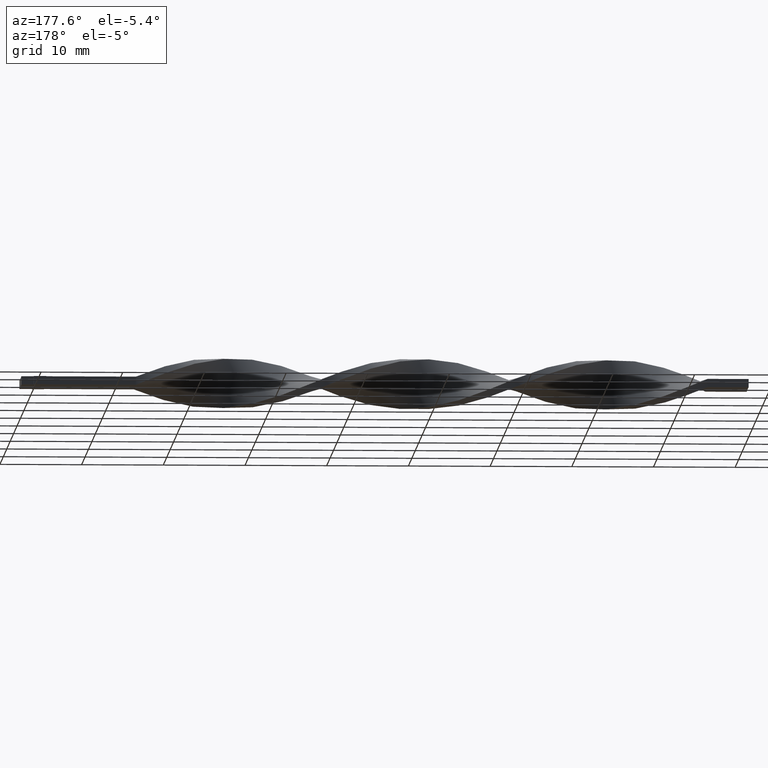
[diagram: clean part render]
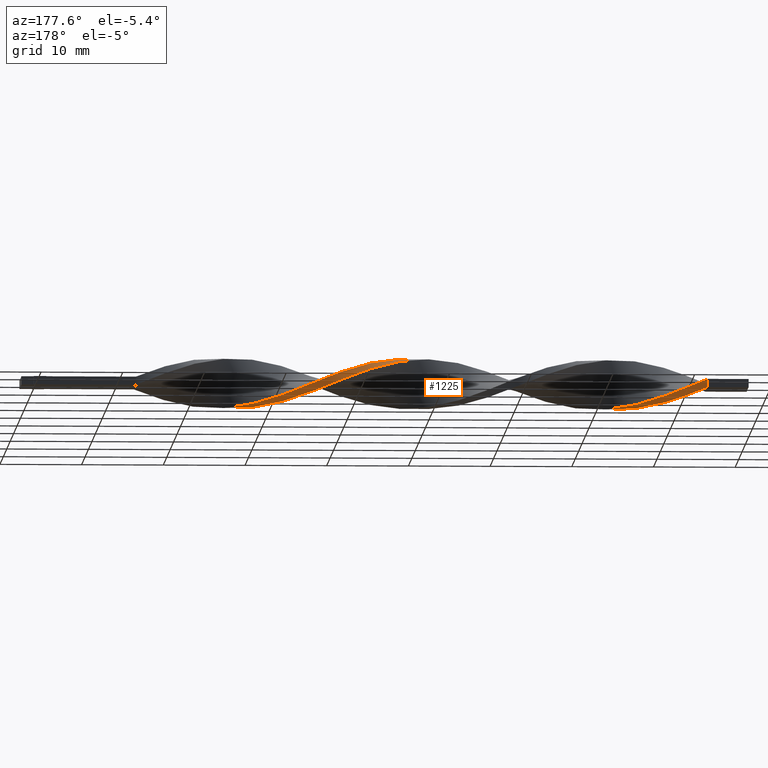
[diagram: same view with one face highlighted and labeled with its STEP entity id]
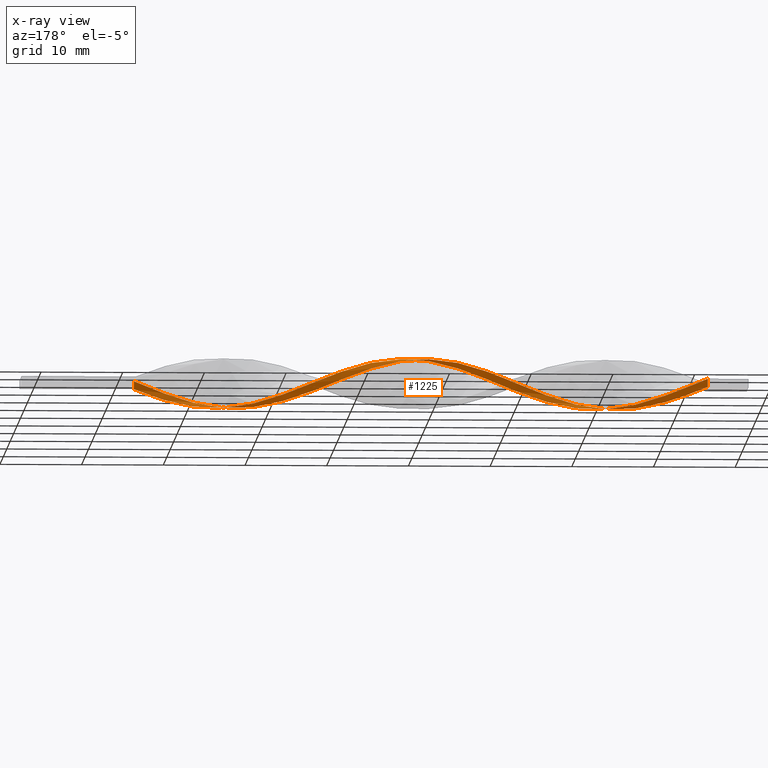
[diagram: x-ray of the same camera — body ghosted, the highlighted face saturated]
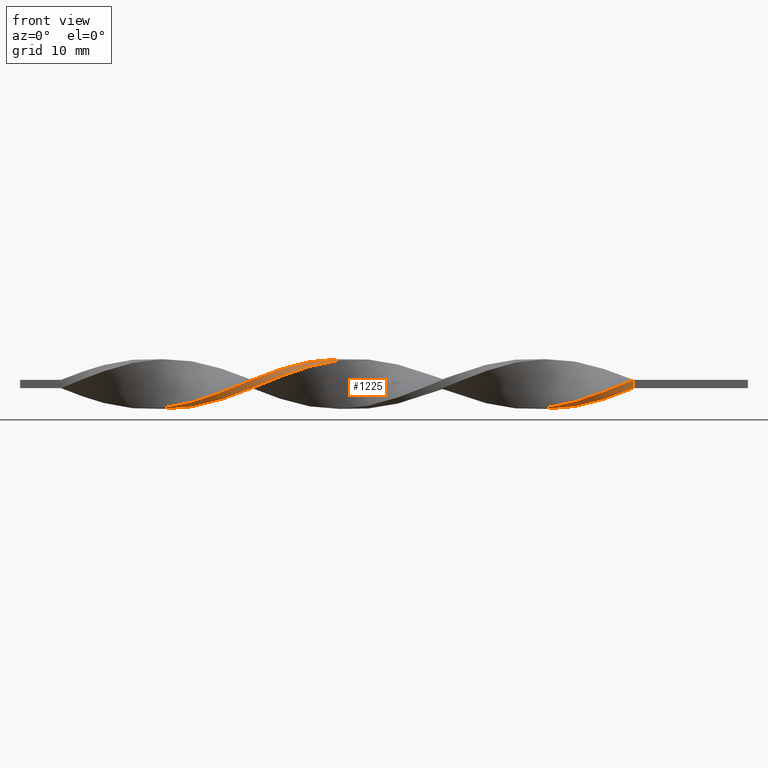
[diagram: same view with one face highlighted and labeled with its STEP entity id]
A machine part, auxiliary view. The second image highlights one B-rep face of the part: STEP entity #1225.
The next image is the same camera in x-ray: the body ghosted, the highlighted face saturated — about 0% of this face is hidden behind the body in this view.
A second angle (front view) of the same face is appended — the face is thin or edge-on in the first view.
In plain terms, the highlighted face is a freeform B-spline surface patch.
Its self-contained STEP definition (entity closure, byte-faithful):
#3 = CARTESIAN_POINT ( 'NONE',  ( -75.02564102564102200, 1.531322782470313726, -2.627746284534976162 ) ) ;
#6 = CARTESIAN_POINT ( 'NONE',  ( -22.97435897435897090, -0.5963065397848997806, -2.982351171577511284 ) ) ;
#10 = CARTESIAN_POINT ( 'NONE',  ( -71.43589743589743080, 0.1347443962830574271, -3.038394962421822942 ) ) ;
#11 = CARTESIAN_POINT ( 'NONE',  ( -46.30769230769230660, 0.5963065397849001137, 2.982351171577511284 ) ) ;
#14 = CARTESIAN_POINT ( 'NONE',  ( -52.58974358974358410, -1.850388947743476065, 2.441810035334000872 ) ) ;
#20 = CARTESIAN_POINT ( 'NONE',  ( -51.69230769230769340, -0.5963065397848990035, 2.982351171577511728 ) ) ;
#21 = CARTESIAN_POINT ( 'NONE',  ( -35.53846153846153300, 3.032483284421934044, -0.2324760841496482100 ) ) ;
#23 = CARTESIAN_POINT ( 'NONE',  ( -62.46153846153845990, -2.793167620134376694, -1.203417901575699167 ) ) ;
#26 = CARTESIAN_POINT ( 'NONE',  ( -61.56410256410256920, -3.060710991611129472, 0.1357340503332185311 ) ) ;
#31 = CARTESIAN_POINT ( 'NONE',  ( -16.69230769230769695, -2.647046231879884193, -1.542569853484616615 ) ) ;
#32 = ORIENTED_EDGE ( 'NONE', *, *, #562, .T. ) ;
#35 = CARTESIAN_POINT ( 'NONE',  ( -55.28205128205128460, -1.913970915392903871, 2.363623348807935898 ) ) ;
#39 = CARTESIAN_POINT ( 'NONE',  ( -28.35897435897435770, 1.531322782470313726, -2.627746284534976162 ) ) ;
#43 = CARTESIAN_POINT ( 'NONE',  ( -66.05128205128204399, -2.577093573633700174, -1.615112600636833928 ) ) ;
#52 = CARTESIAN_POINT ( 'NONE',  ( -66.94871794871794179, -2.380983398537113160, -1.928028413296780874 ) ) ;
#67 = CARTESIAN_POINT ( 'NONE',  ( -28.35897435897435770, 1.531322782470313726, -2.627746284534976162 ) ) ;
#68 = CARTESIAN_POINT ( 'NONE',  ( -17.58974358974358765, -2.888729662981512902, -0.9514415033047003423 ) ) ;
#70 = CARTESIAN_POINT ( 'NONE',  ( -74.12820512820512420, 0.2341835458667254066, -3.054755894246597769 ) ) ;
#76 = CARTESIAN_POINT ( 'NONE',  ( -30.15384615384615330, 2.115686173140294724, -2.184919224315390540 ) ) ;
#94 = CARTESIAN_POINT ( 'NONE',  ( -41.82051282051281760, 2.773203748730288076, 1.302196787976887205 ) ) ;
#99 = CARTESIAN_POINT ( 'NONE',  ( -38.23076923076922640, 2.939289008388868751, 0.8642659496667810526 ) ) ;
#103 = CARTESIAN_POINT ( 'NONE',  ( -40.92307692307691980, 2.888729662981512902, 0.9514415033047001202 ) ) ;
#112 = CARTESIAN_POINT ( 'NONE',  ( -82.20512820512820440, 2.793167620134375806, -1.203417901575700055 ) ) ;
#114 = CARTESIAN_POINT ( 'NONE',  ( -13.99999999999999822, -2.999999999999999112, 0.5000000000000000000 ) ) ;
#120 = CARTESIAN_POINT ( 'NONE',  ( -36.43589743589743790, 2.939289008388868751, -0.8642659496667828289 ) ) ;
#122 = CARTESIAN_POINT ( 'NONE',  ( -72.33333333333332860, 0.5036723384328412045, -3.022034030597047671 ) ) ;
#126 = CARTESIAN_POINT ( 'NONE',  ( -70.53846153846153300, -0.2341835458667257397, -3.054755894246597769 ) ) ;
#128 = CARTESIAN_POINT ( 'NONE',  ( -75.92307692307693401, 1.850388947743477175, -2.441810035334000428 ) ) ;
#131 = CARTESIAN_POINT ( 'NONE',  ( -44.51282051282051100, 1.292702307246639037, 2.752983971046546685 ) ) ;
#136 = CARTESIAN_POINT ( 'NONE',  ( -22.97435897435897090, -1.531322782470314392, -2.627746284534975718 ) ) ;
#139 = CARTESIAN_POINT ( 'NONE',  ( -31.05128205128205821, 2.380983398537112272, -1.928028413296781984 ) ) ;
#142 = CARTESIAN_POINT ( 'NONE',  ( -49.00000000000000711, 0.5036723384328419817, 3.022034030597047671 ) ) ;
#146 = CARTESIAN_POINT ( 'NONE',  ( -65.15384615384614619, -2.773203748730287632, -1.302196787976887871 ) ) ;
#147 = CARTESIAN_POINT ( 'NONE',  ( -57.07692307692307310, -2.888729662981512458, 0.9514415033047024517 ) ) ;
#149 = CARTESIAN_POINT ( 'NONE',  ( -60.66666666666666430, -2.999999999999999112, 0.5000000000000000000 ) ) ;
#154 = CARTESIAN_POINT ( 'NONE',  ( -53.48717948717948900, -2.115686173140294724, 2.184919224315391428 ) ) ;
#161 = CARTESIAN_POINT ( 'NONE',  ( -30.15384615384615330, 2.115686173140294724, -2.184919224315390540 ) ) ;
#164 = CARTESIAN_POINT ( 'NONE',  ( -57.97435897435897090, -3.004255577232739061, 0.6006862186325138131 ) ) ;
#173 = CARTESIAN_POINT ( 'NONE',  ( -24.76923076923076650, -0.8579644778149966289, -2.917858282166499340 ) ) ;
#176 =( BOUNDED_SURFACE ( )  B_SPLINE_SURFACE ( 1, 2, ( 
 ( #514, #1157, #1014, #31, #1136, #246, #275, #1527, #400, #758, #6, #792, #914, #520, #393, #1417, #39, #1503, #161, #139, #1386, #1294, #378, #1167, #21, #650, #1263, #1410, #886, #898, #530, #637, #1283, #1030, #131, #1521, #627, #506, #1508, #385, #893, #253, #1142, #14, #154, #1403, #263, #1276, #147, #643, #1551, #663, #1177, #1309, #1441, #305, #817, #684, #1273, #896, #244, #1389, #479, #1132, #10, #122, #250, #1376, #3, #128, #1512, #754, #985, #762, #1266, #634, #232, #1259, #1398 ),
 ( #114, #511, #355, #609, #1501, #381, #736, #1245, #624, #367, #136, #617, #890, #1607, #1489, #1255, #239, #1127, #504, #1111, #865, #1011, #1140, #489, #1384, #497, #747, #389, #258, #994, #771, #602, #1596, #882, #1368, #1495, #1614, #1003, #375, #142, #271, #780, #667, #654, #1162, #1517, #35, #517, #534, #1279, #1039, #1537, #149, #26, #1173, #1531, #414, #918, #43, #52, #541, #1045, #925, #290, #803, #1182, #1325, #70, #420, #1505, #368, #1113, #867, #1018, #1399, #739, #259, #772, #1247 ) ),
 .UNSPECIFIED., .F., .F., .F. ) 
 B_SPLINE_SURFACE_WITH_KNOTS ( ( 2, 2 ),
 ( 3, 2, 2, 2, 2, 2, 2, 2, 2, 2, 2, 2, 2, 2, 2, 2, 2, 2, 2, 2, 2, 2, 2, 2, 2, 2, 2, 2, 2, 2, 2, 2, 2, 2, 2, 2, 2, 2, 2, 3 ),
 ( 0.000000000000000000, 1.000000000000000000 ),
 ( 0.000000000000000000, 0.01923076923076923184, 0.03846153846153846367, 0.05769230769230769551, 0.07692307692307692735, 0.09615384615384615918, 0.1153846153846153910, 0.1346153846153846090, 0.1538461538461538547, 0.1730769230769230727, 0.1923076923076923184, 0.2115384615384615363, 0.2307692307692307820, 0.2500000000000000000, 0.2692307692307692180, 0.2884615384615384359, 0.3076923076923077094, 0.3269230769230769273, 0.3461538461538461453, 0.3653846153846153633, 0.3846153846153846367, 0.4038461538461538547, 0.4230769230769230727, 0.4423076923076922906, 0.4615384615384615641, 0.4807692307692307820, 0.5000000000000000000, 0.5192307692307692735, 0.5384615384615384359, 0.5576923076923077094, 0.5769230769230768718, 0.5961538461538461453, 0.6153846153846154188, 0.6346153846153845812, 0.6538461538461538547, 0.6730769230769231282, 0.6923076923076922906, 0.7115384615384615641, 0.7307692307692307265, 0.7500000000000000000 ),
 .UNSPECIFIED. ) 
 GEOMETRIC_REPRESENTATION_ITEM ( )  RATIONAL_B_SPLINE_SURFACE ( (
 ( 1.000000000000000000, 0.9927088740980539727, 1.000000000000000000, 0.9927088740980539727, 1.000000000000000000, 0.9927088740980539727, 1.000000000000000000, 0.9927088740980539727, 1.000000000000000000, 0.9927088740980539727, 1.000000000000000000, 0.9927088740980539727, 1.000000000000000000, 0.9927088740980539727, 1.000000000000000000, 0.9927088740980539727, 1.000000000000000000, 0.9927088740980539727, 1.000000000000000000, 0.9927088740980539727, 1.000000000000000000, 0.9927088740980539727, 1.000000000000000000, 0.9927088740980539727, 1.000000000000000000, 0.9927088740980539727, 1.000000000000000000, 0.9927088740980539727, 1.000000000000000000, 0.9927088740980539727, 1.000000000000000000, 0.9927088740980539727, 1.000000000000000000, 0.9927088740980539727, 1.000000000000000000, 0.9927088740980539727, 1.000000000000000000, 0.9927088740980539727, 1.000000000000000000, 0.9927088740980539727, 1.000000000000000000, 0.9927088740980539727, 1.000000000000000000, 0.9927088740980539727, 1.000000000000000000, 0.9927088740980539727, 1.000000000000000000, 0.9927088740980539727, 1.000000000000000000, 0.9927088740980539727, 1.000000000000000000, 0.9927088740980539727, 1.000000000000000000, 0.9927088740980539727, 1.000000000000000000, 0.9927088740980539727, 1.000000000000000000, 0.9927088740980539727, 1.000000000000000000, 0.9927088740980539727, 1.000000000000000000, 0.9927088740980539727, 1.000000000000000000, 0.9927088740980539727, 1.000000000000000000, 0.9927088740980539727, 1.000000000000000000, 0.9927088740980539727, 1.000000000000000000, 0.9927088740980539727, 1.000000000000000000, 0.9927088740980539727, 1.000000000000000000, 0.9927088740980539727, 1.000000000000000000, 0.9927088740980539727, 1.000000000000000000, 0.9927088740980539727, 1.000000000000000000),
 ( 1.000000000000000000, 0.9927088740980539727, 1.000000000000000000, 0.9927088740980539727, 1.000000000000000000, 0.9927088740980539727, 1.000000000000000000, 0.9927088740980539727, 1.000000000000000000, 0.9927088740980539727, 1.000000000000000000, 0.9927088740980539727, 1.000000000000000000, 0.9927088740980539727, 1.000000000000000000, 0.9927088740980539727, 1.000000000000000000, 0.9927088740980539727, 1.000000000000000000, 0.9927088740980539727, 1.000000000000000000, 0.9927088740980539727, 1.000000000000000000, 0.9927088740980539727, 1.000000000000000000, 0.9927088740980539727, 1.000000000000000000, 0.9927088740980539727, 1.000000000000000000, 0.9927088740980539727, 1.000000000000000000, 0.9927088740980539727, 1.000000000000000000, 0.9927088740980539727, 1.000000000000000000, 0.9927088740980539727, 1.000000000000000000, 0.9927088740980539727, 1.000000000000000000, 0.9927088740980539727, 1.000000000000000000, 0.9927088740980539727, 1.000000000000000000, 0.9927088740980539727, 1.000000000000000000, 0.9927088740980539727, 1.000000000000000000, 0.9927088740980539727, 1.000000000000000000, 0.9927088740980539727, 1.000000000000000000, 0.9927088740980539727, 1.000000000000000000, 0.9927088740980539727, 1.000000000000000000, 0.9927088740980539727, 1.000000000000000000, 0.9927088740980539727, 1.000000000000000000, 0.9927088740980539727, 1.000000000000000000, 0.9927088740980539727, 1.000000000000000000, 0.9927088740980539727, 1.000000000000000000, 0.9927088740980539727, 1.000000000000000000, 0.9927088740980539727, 1.000000000000000000, 0.9927088740980539727, 1.000000000000000000, 0.9927088740980539727, 1.000000000000000000, 0.9927088740980539727, 1.000000000000000000, 0.9927088740980539727, 1.000000000000000000, 0.9927088740980539727, 1.000000000000000000) ) ) 
 REPRESENTATION_ITEM ( '' )  SURFACE ( )  );
#192 = VERTEX_POINT ( 'NONE', #594 ) ;
#210 = CARTESIAN_POINT ( 'NONE',  ( -64.25641025641024839, -2.888729662981512902, -0.9514415033047003423 ) ) ;
#212 = CARTESIAN_POINT ( 'NONE',  ( -53.48717948717948900, -2.115686173140294724, 2.184919224315391428 ) ) ;
#220 = CARTESIAN_POINT ( 'NONE',  ( -47.20512820512820440, 1.212256617197150721, 2.813682533735952340 ) ) ;
#225 = CARTESIAN_POINT ( 'NONE',  ( -39.12820512820512420, 2.793167620134376694, 1.203417901575698279 ) ) ;
#228 = CARTESIAN_POINT ( 'NONE',  ( -75.92307692307691980, 0.9584295337030727113, -2.909946448908425243 ) ) ;
#230 = CARTESIAN_POINT ( 'NONE',  ( -14.89743589743589602, -2.939289008388868751, -0.8642659496667816077 ) ) ;
#232 = CARTESIAN_POINT ( 'NONE',  ( -82.20512820512820440, 3.032483284421934044, -0.2324760841496482100 ) ) ;
#235 = CARTESIAN_POINT ( 'NONE',  ( -71.43589743589743080, -0.8579644778149966289, -2.917858282166499340 ) ) ;
#239 = CARTESIAN_POINT ( 'NONE',  ( -28.35897435897435770, 0.5963065397848987814, -2.982351171577511728 ) ) ;
#242 = FACE_OUTER_BOUND ( 'NONE', #1426, .T. ) ;
#244 = CARTESIAN_POINT ( 'NONE',  ( -67.84615384615385381, -1.292702307246639037, -2.752983971046546685 ) ) ;
#246 = CARTESIAN_POINT ( 'NONE',  ( -18.48717948717948545, -2.200966749995605376, -2.131225204431203224 ) ) ;
#250 = CARTESIAN_POINT ( 'NONE',  ( -73.23076923076924061, 0.8579644778149956297, -2.917858282166499784 ) ) ;
#253 = CARTESIAN_POINT ( 'NONE',  ( -50.79487179487178850, -1.212256617197149611, 2.813682533735953228 ) ) ;
#258 = CARTESIAN_POINT ( 'NONE',  ( -39.12820512820512420, 3.032483284421934044, 0.2324760841496460451 ) ) ;
#259 = CARTESIAN_POINT ( 'NONE',  ( -82.20512820512820440, 2.793167620134375806, -1.203417901575700055 ) ) ;
#262 = CARTESIAN_POINT ( 'NONE',  ( -57.07692307692307310, -2.424006490937743230, 1.836897528957911918 ) ) ;
#263 = CARTESIAN_POINT ( 'NONE',  ( -55.28205128205128460, -2.577093573633699286, 1.615112600636835483 ) ) ;
#271 = CARTESIAN_POINT ( 'NONE',  ( -49.89743589743589069, 0.1347443962830601472, 3.038394962421822498 ) ) ;
#275 = CARTESIAN_POINT ( 'NONE',  ( -19.38461538461538325, -1.913970915392905425, -2.363623348807935454 ) ) ;
#290 = CARTESIAN_POINT ( 'NONE',  ( -70.53846153846153300, -1.212256617197150943, -2.813682533735952340 ) ) ;
#294 = CARTESIAN_POINT ( 'NONE',  ( -83.10256410256410220, 2.939289008388868751, -0.8642659496667828289 ) ) ;
#296 = CARTESIAN_POINT ( 'NONE',  ( -31.94871794871794535, 2.577093573633699730, -1.615112600636835261 ) ) ;
#305 = CARTESIAN_POINT ( 'NONE',  ( -63.35897435897435770, -2.647046231879884193, -1.542569853484616615 ) ) ;
#309 = CARTESIAN_POINT ( 'NONE',  ( -21.17948717948717885, -1.292702307246639037, -2.752983971046546685 ) ) ;
#321 = CARTESIAN_POINT ( 'NONE',  ( -49.89743589743589069, -0.8579644778149938533, 2.917858282166499784 ) ) ;
#334 = CARTESIAN_POINT ( 'NONE',  ( -66.94871794871795601, -2.380983398537113160, -1.928028413296780874 ) ) ;
#345 = CARTESIAN_POINT ( 'NONE',  ( -29.25641025641025905, 0.9584295337030727113, -2.909946448908425243 ) ) ;
#350 = CARTESIAN_POINT ( 'NONE',  ( -34.64102564102564230, 3.004255577232739061, -0.6006862186325134800 ) ) ;
#353 = CARTESIAN_POINT ( 'NONE',  ( -77.71794871794874382, 1.626975080790203920, -2.596021493184668572 ) ) ;
#355 = CARTESIAN_POINT ( 'NONE',  ( -15.79487179487179205, -3.032483284421934044, -0.2324760841496470720 ) ) ;
#359 = CARTESIAN_POINT ( 'NONE',  ( -36.43589743589743790, 3.060710991611129472, 0.1357340503332171711 ) ) ;
#363 = CARTESIAN_POINT ( 'NONE',  ( -26.56410256410256210, -0.1347443962830584541, -3.038394962421822498 ) ) ;
#367 = CARTESIAN_POINT ( 'NONE',  ( -22.07692307692308376, -1.850388947743477397, -2.441810035334000428 ) ) ;
#368 = CARTESIAN_POINT ( 'NONE',  ( -76.82051282051281760, 1.292702307246638371, -2.752983971046546685 ) ) ;
#373 = CARTESIAN_POINT ( 'NONE',  ( -31.94871794871794535, 1.913970915392904315, -2.363623348807935898 ) ) ;
#375 = CARTESIAN_POINT ( 'NONE',  ( -48.10256410256410220, 0.8579644778149976281, 2.917858282166499340 ) ) ;
#377 = CARTESIAN_POINT ( 'NONE',  ( -35.53846153846153300, 3.032483284421934044, -0.2324760841496482100 ) ) ;
#378 = CARTESIAN_POINT ( 'NONE',  ( -33.74358974358974450, 2.888729662981512902, -0.9514415033047007864 ) ) ;
#381 = CARTESIAN_POINT ( 'NONE',  ( -18.48717948717948545, -2.773203748730287632, -1.302196787976887649 ) ) ;
#385 = CARTESIAN_POINT ( 'NONE',  ( -49.00000000000000711, -0.5036723384328408715, 3.022034030597047671 ) ) ;
#389 = CARTESIAN_POINT ( 'NONE',  ( -38.23076923076922640, 3.060710991611129472, -0.1357340503332191695 ) ) ;
#393 = CARTESIAN_POINT ( 'NONE',  ( -26.56410256410256210, 0.8579644778149956297, -2.917858282166499784 ) ) ;
#400 = CARTESIAN_POINT ( 'NONE',  ( -21.17948717948717885, -1.292702307246639037, -2.752983971046546685 ) ) ;
#402 = CARTESIAN_POINT ( 'NONE',  ( -65.15384615384614619, -2.200966749995605376, -2.131225204431203224 ) ) ;
#409 = CARTESIAN_POINT ( 'NONE',  ( -64.25641025641024839, -2.424006490937744562, -1.836897528957910142 ) ) ;
#411 = CARTESIAN_POINT ( 'NONE',  ( -78.61538461538461320, 2.577093573633699730, -1.615112600636835261 ) ) ;
#414 = CARTESIAN_POINT ( 'NONE',  ( -64.25641025641024839, -2.888729662981512902, -0.9514415033047003423 ) ) ;
#420 = CARTESIAN_POINT ( 'NONE',  ( -75.02564102564102200, 0.5963065397848987814, -2.982351171577511728 ) ) ;
#442 = CARTESIAN_POINT ( 'NONE',  ( -29.25641025641025905, 1.850388947743477397, -2.441810035334000428 ) ) ;
#468 = CARTESIAN_POINT ( 'NONE',  ( -72.33333333333332860, -0.5036723384328416486, -3.022034030597047671 ) ) ;
#477 = CARTESIAN_POINT ( 'NONE',  ( -57.97435897435897090, -2.647046231879883305, 1.542569853484617948 ) ) ;
#479 = CARTESIAN_POINT ( 'NONE',  ( -69.64102564102564941, -0.5963065397848997806, -2.982351171577511284 ) ) ;
#487 = CARTESIAN_POINT ( 'NONE',  ( -61.56410256410256920, -3.060710991611129472, 0.1357340503332185033 ) ) ;
#489 = CARTESIAN_POINT ( 'NONE',  ( -34.64102564102564230, 2.647046231879883305, -1.542569853484617726 ) ) ;
#493 = CARTESIAN_POINT ( 'NONE',  ( -40.92307692307691980, 2.424006490937744562, 1.836897528957909920 ) ) ;
#495 = CARTESIAN_POINT ( 'NONE',  ( -44.51282051282051100, 2.115686173140295168, 2.184919224315390540 ) ) ;
#497 = CARTESIAN_POINT ( 'NONE',  ( -36.43589743589743790, 2.939289008388868751, -0.8642659496667827179 ) ) ;
#504 = CARTESIAN_POINT ( 'NONE',  ( -30.15384615384615330, 1.292702307246638371, -2.752983971046546685 ) ) ;
#506 = CARTESIAN_POINT ( 'NONE',  ( -47.20512820512820440, 0.2341835458667255176, 3.054755894246597769 ) ) ;
#508 = CARTESIAN_POINT ( 'NONE',  ( -61.56410256410256920, -2.939289008388868751, -0.8642659496667816077 ) ) ;
#511 = CARTESIAN_POINT ( 'NONE',  ( -14.89743589743589602, -3.060710991611129472, 0.1357340503332185311 ) ) ;
#514 = CARTESIAN_POINT ( 'NONE',  ( -13.99999999999999822, -2.999999999999999112, -0.5000000000000000000 ) ) ;
#517 = CARTESIAN_POINT ( 'NONE',  ( -56.17948717948717530, -2.200966749995605376, 2.131225204431204112 ) ) ;
#520 = CARTESIAN_POINT ( 'NONE',  ( -25.66666666666666785, 0.5036723384328412045, -3.022034030597047671 ) ) ;
#530 = CARTESIAN_POINT ( 'NONE',  ( -40.92307692307691980, 2.424006490937744562, 1.836897528957909920 ) ) ;
#534 = CARTESIAN_POINT ( 'NONE',  ( -57.07692307692307310, -2.424006490937743230, 1.836897528957911918 ) ) ;
#541 = CARTESIAN_POINT ( 'NONE',  ( -67.84615384615385381, -2.115686173140295168, -2.184919224315390540 ) ) ;
#547 = CARTESIAN_POINT ( 'NONE',  ( -80.41025641025640880, 2.888729662981512902, -0.9514415033047007864 ) ) ;
#557 = CARTESIAN_POINT ( 'NONE',  ( -24.76923076923076650, 0.1347443962830574271, -3.038394962421822942 ) ) ;
#562 = EDGE_CURVE ( 'NONE', #192, #766, #888, .T. ) ;
#568 = CARTESIAN_POINT ( 'NONE',  ( -18.48717948717948545, -2.773203748730287632, -1.302196787976887871 ) ) ;
#585 = CARTESIAN_POINT ( 'NONE',  ( -52.58974358974359120, -1.850388947743476065, 2.441810035334000872 ) ) ;
#591 = CARTESIAN_POINT ( 'NONE',  ( -67.84615384615385381, -2.115686173140295168, -2.184919224315390540 ) ) ;
#594 = CARTESIAN_POINT ( 'NONE',  ( -13.99999999999999822, -2.999999999999999112, 0.5000000000000000000 ) ) ;
#599 = CARTESIAN_POINT ( 'NONE',  ( -27.46153846153846345, 0.2341835458667254066, -3.054755894246597769 ) ) ;
#602 = CARTESIAN_POINT ( 'NONE',  ( -41.82051282051281760, 2.773203748730288076, 1.302196787976887205 ) ) ;
#607 = CARTESIAN_POINT ( 'NONE',  ( -35.53846153846153300, 2.793167620134375806, -1.203417901575700055 ) ) ;
#609 = CARTESIAN_POINT ( 'NONE',  ( -16.69230769230769695, -3.004255577232739061, -0.6006862186325124808 ) ) ;
#615 = CARTESIAN_POINT ( 'NONE',  ( -33.74358974358974450, 2.424006490937744562, -1.836897528957910586 ) ) ;
#617 = CARTESIAN_POINT ( 'NONE',  ( -23.87179487179487580, -1.212256617197150943, -2.813682533735952340 ) ) ;
#619 = CARTESIAN_POINT ( 'NONE',  ( -42.71794871794872250, 1.913970915392905869, 2.363623348807935454 ) ) ;
#624 = CARTESIAN_POINT ( 'NONE',  ( -21.17948717948717885, -2.115686173140295168, -2.184919224315390540 ) ) ;
#627 = CARTESIAN_POINT ( 'NONE',  ( -46.30769230769230660, 0.5963065397849001137, 2.982351171577511284 ) ) ;
#632 = CARTESIAN_POINT ( 'NONE',  ( -13.99999999999999822, -2.999999999999999112, -0.5000000000000000000 ) ) ;
#634 = CARTESIAN_POINT ( 'NONE',  ( -81.30769230769233502, 3.004255577232739061, -0.6006862186325132580 ) ) ;
#637 = CARTESIAN_POINT ( 'NONE',  ( -41.82051282051281760, 2.200966749995605820, 2.131225204431203224 ) ) ;
#638 = CARTESIAN_POINT ( 'NONE',  ( -71.43589743589743080, 0.1347443962830574271, -3.038394962421822942 ) ) ;
#642 = CARTESIAN_POINT ( 'NONE',  ( -43.61538461538461320, 2.380983398537114049, 1.928028413296780430 ) ) ;
#643 = CARTESIAN_POINT ( 'NONE',  ( -57.97435897435897090, -3.004255577232739061, 0.6006862186325138131 ) ) ;
#644 = VERTEX_POINT ( 'NONE', #657 ) ;
#649 = CARTESIAN_POINT ( 'NONE',  ( -84.00000000000000000, 2.999999999999999112, -0.5000000000000003331 ) ) ;
#650 = CARTESIAN_POINT ( 'NONE',  ( -36.43589743589743790, 3.060710991611129472, 0.1357340503332171988 ) ) ;
#654 = CARTESIAN_POINT ( 'NONE',  ( -52.58974358974358410, -0.9584295337030710460, 2.909946448908425243 ) ) ;
#657 = CARTESIAN_POINT ( 'NONE',  ( -13.99999999999999822, -2.999999999999999112, -0.5000000000000000000 ) ) ;
#663 = CARTESIAN_POINT ( 'NONE',  ( -59.76923076923077360, -3.060710991611129916, -0.1357340503332168102 ) ) ;
#667 = CARTESIAN_POINT ( 'NONE',  ( -51.69230769230769340, -0.5963065397848990035, 2.982351171577511728 ) ) ;
#674 =( BOUNDED_CURVE ( )  B_SPLINE_CURVE ( 2, ( #632, #230, #1053, #927, #1430, #745, #1082, #1467, #309, #854, #1357, #821, #557, #1554, #1321, #1197, #67, #442, #76, #969, #296, #756, #1240, #350, #377, #359, #869, #99, #225, #1474, #493, #1106, #619, #1129, #1262, #1356, #11, #738, #1121, #748, #321, #1332, #707, #585, #212, #696, #1209, #1093, #1351, #164, #1179, #1435, #786, #508, #23, #1285, #409, #402, #1395, #1419, #767, #794, #759, #126, #638, #1008, #887, #900, #1171, #1287, #1160, #1042, #411, #1054, #547, #1091, #704, #845, #1233 ),
 .UNSPECIFIED., .F., .T. ) 
 B_SPLINE_CURVE_WITH_KNOTS ( ( 3, 2, 2, 2, 2, 2, 2, 2, 2, 2, 2, 2, 2, 2, 2, 2, 2, 2, 2, 2, 2, 2, 2, 2, 2, 2, 2, 2, 2, 2, 2, 2, 2, 2, 2, 2, 2, 2, 2, 3 ),
 ( 0.000000000000000000, 0.01923076923076923184, 0.03846153846153846367, 0.05769230769230768857, 0.07692307692307692735, 0.09615384615384615918, 0.1153846153846153771, 0.1346153846153846090, 0.1538461538461538547, 0.1730769230769230449, 0.1923076923076923184, 0.2115384615384615363, 0.2307692307692307543, 0.2500000000000000000, 0.2692307692307692180, 0.2884615384615384359, 0.3076923076923077094, 0.3269230769230769273, 0.3461538461538460898, 0.3653846153846153633, 0.3846153846153846367, 0.4038461538461539102, 0.4230769230769230727, 0.4423076923076922906, 0.4615384615384615086, 0.4807692307692307820, 0.5000000000000000000, 0.5192307692307692735, 0.5384615384615384359, 0.5576923076923077094, 0.5769230769230768718, 0.5961538461538461453, 0.6153846153846154188, 0.6346153846153845812, 0.6538461538461538547, 0.6730769230769230171, 0.6923076923076921796, 0.7115384615384615641, 0.7307692307692307265, 0.7500000000000000000 ),
 .UNSPECIFIED. ) 
 CURVE ( )  GEOMETRIC_REPRESENTATION_ITEM ( )  RATIONAL_B_SPLINE_CURVE ( ( 1.000000000000000000, 0.9927088740980539727, 1.000000000000000000, 0.9927088740980539727, 1.000000000000000000, 0.9927088740980539727, 1.000000000000000000, 0.9927088740980539727, 1.000000000000000000, 0.9927088740980539727, 1.000000000000000000, 0.9927088740980539727, 1.000000000000000000, 0.9927088740980539727, 1.000000000000000000, 0.9927088740980539727, 1.000000000000000000, 0.9927088740980539727, 1.000000000000000000, 0.9927088740980539727, 1.000000000000000000, 0.9927088740980539727, 1.000000000000000000, 0.9927088740980539727, 1.000000000000000000, 0.9927088740980539727, 1.000000000000000000, 0.9927088740980539727, 1.000000000000000000, 0.9927088740980539727, 1.000000000000000000, 0.9927088740980539727, 1.000000000000000000, 0.9927088740980539727, 1.000000000000000000, 0.9927088740980539727, 1.000000000000000000, 0.9927088740980539727, 1.000000000000000000, 0.9927088740980539727, 1.000000000000000000, 0.9927088740980539727, 1.000000000000000000, 0.9927088740980539727, 1.000000000000000000, 0.9927088740980539727, 1.000000000000000000, 0.9927088740980539727, 1.000000000000000000, 0.9927088740980539727, 1.000000000000000000, 0.9927088740980539727, 1.000000000000000000, 0.9927088740980539727, 1.000000000000000000, 0.9927088740980539727, 1.000000000000000000, 0.9927088740980539727, 1.000000000000000000, 0.9927088740980539727, 1.000000000000000000, 0.9927088740980539727, 1.000000000000000000, 0.9927088740980539727, 1.000000000000000000, 0.9927088740980539727, 1.000000000000000000, 0.9927088740980539727, 1.000000000000000000, 0.9927088740980539727, 1.000000000000000000, 0.9927088740980539727, 1.000000000000000000, 0.9927088740980539727, 1.000000000000000000, 0.9927088740980539727, 1.000000000000000000, 0.9927088740980539727, 1.000000000000000000 ) ) 
 REPRESENTATION_ITEM ( '' )  );
#684 = CARTESIAN_POINT ( 'NONE',  ( -65.15384615384614619, -2.200966749995605376, -2.131225204431203224 ) ) ;
#687 = CARTESIAN_POINT ( 'NONE',  ( -13.99999999999999822, -2.999999999999999112, 0.5000000000000000000 ) ) ;
#694 = CARTESIAN_POINT ( 'NONE',  ( -14.89743589743589602, -3.060710991611129472, 0.1357340503332185033 ) ) ;
#696 = CARTESIAN_POINT ( 'NONE',  ( -54.38461538461538680, -2.380983398537111384, 1.928028413296783095 ) ) ;
#704 = CARTESIAN_POINT ( 'NONE',  ( -82.20512820512820440, 3.032483284421934044, -0.2324760841496482100 ) ) ;
#707 = CARTESIAN_POINT ( 'NONE',  ( -51.69230769230769340, -1.531322782470313726, 2.627746284534976162 ) ) ;
#710 = VECTOR ( 'NONE', #1556, 1000.000000000000000 ) ;
#716 = CARTESIAN_POINT ( 'NONE',  ( -70.53846153846153300, -1.212256617197150943, -2.813682533735952340 ) ) ;
#723 = CARTESIAN_POINT ( 'NONE',  ( -49.89743589743589069, 0.1347443962830601472, 3.038394962421822498 ) ) ;
#732 = CARTESIAN_POINT ( 'NONE',  ( -80.41025641025640880, 2.424006490937744562, -1.836897528957910586 ) ) ;
#736 = CARTESIAN_POINT ( 'NONE',  ( -19.38461538461538325, -2.577093573633700174, -1.615112600636833928 ) ) ;
#738 = CARTESIAN_POINT ( 'NONE',  ( -47.20512820512820440, 0.2341835458667255176, 3.054755894246597769 ) ) ;
#739 = CARTESIAN_POINT ( 'NONE',  ( -81.30769230769233502, 2.647046231879883305, -1.542569853484617726 ) ) ;
#744 = CARTESIAN_POINT ( 'NONE',  ( -76.82051282051281760, 1.292702307246638371, -2.752983971046546685 ) ) ;
#745 = CARTESIAN_POINT ( 'NONE',  ( -18.48717948717948545, -2.200966749995605376, -2.131225204431203224 ) ) ;
#747 = CARTESIAN_POINT ( 'NONE',  ( -37.33333333333332860, 2.999999999999999112, -0.5000000000000003331 ) ) ;
#748 = CARTESIAN_POINT ( 'NONE',  ( -49.00000000000000000, -0.5036723384328409825, 3.022034030597047671 ) ) ;
#754 = CARTESIAN_POINT ( 'NONE',  ( -77.71794871794872961, 2.380983398537112272, -1.928028413296781984 ) ) ;
#756 = CARTESIAN_POINT ( 'NONE',  ( -32.84615384615384670, 2.773203748730287632, -1.302196787976888093 ) ) ;
#758 = CARTESIAN_POINT ( 'NONE',  ( -22.07692307692308376, -0.9584295337030730444, -2.909946448908424799 ) ) ;
#759 = CARTESIAN_POINT ( 'NONE',  ( -69.64102564102564941, -0.5963065397848997806, -2.982351171577511284 ) ) ;
#762 = CARTESIAN_POINT ( 'NONE',  ( -79.51282051282051100, 2.773203748730287632, -1.302196787976887871 ) ) ;
#766 = VERTEX_POINT ( 'NONE', #1292 ) ;
#767 = CARTESIAN_POINT ( 'NONE',  ( -67.84615384615385381, -1.292702307246639037, -2.752983971046546685 ) ) ;
#771 = CARTESIAN_POINT ( 'NONE',  ( -40.92307692307691980, 2.888729662981512902, 0.9514415033047001202 ) ) ;
#772 = CARTESIAN_POINT ( 'NONE',  ( -83.10256410256410220, 2.939289008388868751, -0.8642659496667827179 ) ) ;
#775 = CARTESIAN_POINT ( 'NONE',  ( -62.46153846153845990, -3.032483284421934044, -0.2324760841496470720 ) ) ;
#780 = CARTESIAN_POINT ( 'NONE',  ( -50.79487179487178850, -0.2341835458667242409, 3.054755894246597769 ) ) ;
#786 = CARTESIAN_POINT ( 'NONE',  ( -60.66666666666666430, -2.999999999999999112, -0.5000000000000000000 ) ) ;
#792 = CARTESIAN_POINT ( 'NONE',  ( -23.87179487179487580, -0.2341835458667257397, -3.054755894246597769 ) ) ;
#794 = CARTESIAN_POINT ( 'NONE',  ( -68.74358974358973740, -0.9584295337030730444, -2.909946448908425243 ) ) ;
#801 = CARTESIAN_POINT ( 'NONE',  ( -23.87179487179487580, -1.212256617197150943, -2.813682533735952340 ) ) ;
#803 = CARTESIAN_POINT ( 'NONE',  ( -71.43589743589743080, -0.8579644778149966289, -2.917858282166499340 ) ) ;
#817 = CARTESIAN_POINT ( 'NONE',  ( -64.25641025641024839, -2.424006490937744562, -1.836897528957910142 ) ) ;
#821 = CARTESIAN_POINT ( 'NONE',  ( -23.87179487179487580, -0.2341835458667257397, -3.054755894246597769 ) ) ;
#831 = CARTESIAN_POINT ( 'NONE',  ( -13.99999999999999822, -2.999999999999999112, 0.5000000000000000000 ) ) ;
#845 = CARTESIAN_POINT ( 'NONE',  ( -83.10256410256410220, 3.060710991611129472, 0.1357340503332171711 ) ) ;
#846 = CARTESIAN_POINT ( 'NONE',  ( -55.28205128205128460, -1.913970915392903871, 2.363623348807935898 ) ) ;
#852 = VERTEX_POINT ( 'NONE', #977 ) ;
#854 = CARTESIAN_POINT ( 'NONE',  ( -22.07692307692308020, -0.9584295337030730444, -2.909946448908425243 ) ) ;
#855 = CARTESIAN_POINT ( 'NONE',  ( -38.23076923076922640, 3.060710991611129472, -0.1357340503332191972 ) ) ;
#862 = CARTESIAN_POINT ( 'NONE',  ( -40.02564102564102200, 3.004255577232739505, 0.6006862186325113706 ) ) ;
#865 = CARTESIAN_POINT ( 'NONE',  ( -31.94871794871794535, 1.913970915392904315, -2.363623348807935898 ) ) ;
#867 = CARTESIAN_POINT ( 'NONE',  ( -78.61538461538461320, 1.913970915392904315, -2.363623348807935898 ) ) ;
#869 = CARTESIAN_POINT ( 'NONE',  ( -37.33333333333332860, 2.999999999999999112, 0.4999999999999996669 ) ) ;
#871 = CARTESIAN_POINT ( 'NONE',  ( -56.17948717948717530, -2.200966749995605376, 2.131225204431204112 ) ) ;
#878 = CARTESIAN_POINT ( 'NONE',  ( -39.12820512820512420, 3.032483284421934044, 0.2324760841496460451 ) ) ;
#882 = CARTESIAN_POINT ( 'NONE',  ( -43.61538461538461320, 2.380983398537113604, 1.928028413296780430 ) ) ;
#886 = CARTESIAN_POINT ( 'NONE',  ( -39.12820512820512420, 2.793167620134376694, 1.203417901575698279 ) ) ;
#887 = CARTESIAN_POINT ( 'NONE',  ( -73.23076923076924061, 0.8579644778149956297, -2.917858282166499784 ) ) ;
#888 =( BOUNDED_CURVE ( )  B_SPLINE_CURVE ( 2, ( #687, #694, #1459, #1198, #68, #568, #1074, #1562, #1338, #949, #1428, #801, #173, #1125, #363, #599, #1493, #345, #1108, #1234, #373, #1358, #615, #963, #607, #120, #1602, #855, #878, #862, #103, #94, #1348, #642, #495, #1594, #1498, #220, #1150, #972, #723, #1402, #20, #1275, #1116, #1612, #846, #871, #262, #477, #999, #982, #1373, #487, #775, #992, #210, #146, #1468, #334, #591, #1478, #1586, #716, #235, #468, #1226, #1099, #1486, #228, #744, #353, #1366, #1252, #732, #1242, #112, #294, #649 ),
 .UNSPECIFIED., .F., .T. ) 
 B_SPLINE_CURVE_WITH_KNOTS ( ( 3, 2, 2, 2, 2, 2, 2, 2, 2, 2, 2, 2, 2, 2, 2, 2, 2, 2, 2, 2, 2, 2, 2, 2, 2, 2, 2, 2, 2, 2, 2, 2, 2, 2, 2, 2, 2, 2, 2, 3 ),
 ( 0.000000000000000000, 0.01923076923076923184, 0.03846153846153846367, 0.05769230769230768857, 0.07692307692307692735, 0.09615384615384615918, 0.1153846153846153771, 0.1346153846153846090, 0.1538461538461538547, 0.1730769230769230449, 0.1923076923076923184, 0.2115384615384615363, 0.2307692307692307543, 0.2500000000000000000, 0.2692307692307692180, 0.2884615384615384359, 0.3076923076923077094, 0.3269230769230769273, 0.3461538461538460898, 0.3653846153846153633, 0.3846153846153846367, 0.4038461538461539102, 0.4230769230769230727, 0.4423076923076922906, 0.4615384615384615086, 0.4807692307692307820, 0.5000000000000000000, 0.5192307692307692735, 0.5384615384615384359, 0.5576923076923077094, 0.5769230769230768718, 0.5961538461538461453, 0.6153846153846154188, 0.6346153846153845812, 0.6538461538461538547, 0.6730769230769230171, 0.6923076923076921796, 0.7115384615384615641, 0.7307692307692307265, 0.7500000000000000000 ),
 .UNSPECIFIED. ) 
 CURVE ( )  GEOMETRIC_REPRESENTATION_ITEM ( )  RATIONAL_B_SPLINE_CURVE ( ( 1.000000000000000000, 0.9927088740980539727, 1.000000000000000000, 0.9927088740980539727, 1.000000000000000000, 0.9927088740980539727, 1.000000000000000000, 0.9927088740980539727, 1.000000000000000000, 0.9927088740980539727, 1.000000000000000000, 0.9927088740980539727, 1.000000000000000000, 0.9927088740980539727, 1.000000000000000000, 0.9927088740980539727, 1.000000000000000000, 0.9927088740980539727, 1.000000000000000000, 0.9927088740980539727, 1.000000000000000000, 0.9927088740980539727, 1.000000000000000000, 0.9927088740980539727, 1.000000000000000000, 0.9927088740980539727, 1.000000000000000000, 0.9927088740980539727, 1.000000000000000000, 0.9927088740980539727, 1.000000000000000000, 0.9927088740980539727, 1.000000000000000000, 0.9927088740980539727, 1.000000000000000000, 0.9927088740980539727, 1.000000000000000000, 0.9927088740980539727, 1.000000000000000000, 0.9927088740980539727, 1.000000000000000000, 0.9927088740980539727, 1.000000000000000000, 0.9927088740980539727, 1.000000000000000000, 0.9927088740980539727, 1.000000000000000000, 0.9927088740980539727, 1.000000000000000000, 0.9927088740980539727, 1.000000000000000000, 0.9927088740980539727, 1.000000000000000000, 0.9927088740980539727, 1.000000000000000000, 0.9927088740980539727, 1.000000000000000000, 0.9927088740980539727, 1.000000000000000000, 0.9927088740980539727, 1.000000000000000000, 0.9927088740980539727, 1.000000000000000000, 0.9927088740980539727, 1.000000000000000000, 0.9927088740980539727, 1.000000000000000000, 0.9927088740980539727, 1.000000000000000000, 0.9927088740980539727, 1.000000000000000000, 0.9927088740980539727, 1.000000000000000000, 0.9927088740980539727, 1.000000000000000000, 0.9927088740980539727, 1.000000000000000000, 0.9927088740980539727, 1.000000000000000000 ) ) 
 REPRESENTATION_ITEM ( '' )  );
#890 = CARTESIAN_POINT ( 'NONE',  ( -24.76923076923076650, -0.8579644778149966289, -2.917858282166499340 ) ) ;
#893 = CARTESIAN_POINT ( 'NONE',  ( -49.89743589743589069, -0.8579644778149938533, 2.917858282166499784 ) ) ;
#896 = CARTESIAN_POINT ( 'NONE',  ( -66.94871794871794179, -1.626975080790204808, -2.596021493184667683 ) ) ;
#898 = CARTESIAN_POINT ( 'NONE',  ( -40.02564102564102200, 2.647046231879884637, 1.542569853484615505 ) ) ;
#900 = CARTESIAN_POINT ( 'NONE',  ( -74.12820512820510999, 1.212256617197150721, -2.813682533735952340 ) ) ;
#907 = ORIENTED_EDGE ( 'NONE', *, *, #1522, .F. ) ;
#914 = CARTESIAN_POINT ( 'NONE',  ( -24.76923076923076650, 0.1347443962830574271, -3.038394962421822942 ) ) ;
#918 = CARTESIAN_POINT ( 'NONE',  ( -65.15384615384614619, -2.773203748730287632, -1.302196787976887649 ) ) ;
#925 = CARTESIAN_POINT ( 'NONE',  ( -69.64102564102564941, -1.531322782470314392, -2.627746284534975718 ) ) ;
#927 = CARTESIAN_POINT ( 'NONE',  ( -16.69230769230769340, -2.647046231879884193, -1.542569853484616615 ) ) ;
#949 = CARTESIAN_POINT ( 'NONE',  ( -22.07692307692308020, -1.850388947743477619, -2.441810035334000428 ) ) ;
#961 = ORIENTED_EDGE ( 'NONE', *, *, #1123, .F. ) ;
#963 = CARTESIAN_POINT ( 'NONE',  ( -34.64102564102564230, 2.647046231879883305, -1.542569853484617504 ) ) ;
#969 = CARTESIAN_POINT ( 'NONE',  ( -31.05128205128205465, 2.380983398537112272, -1.928028413296781984 ) ) ;
#972 = CARTESIAN_POINT ( 'NONE',  ( -49.00000000000000000, 0.5036723384328419817, 3.022034030597047671 ) ) ;
#977 = CARTESIAN_POINT ( 'NONE',  ( -84.00000000000000000, 2.999999999999999112, 0.4999999999999996669 ) ) ;
#982 = CARTESIAN_POINT ( 'NONE',  ( -59.76923076923076650, -2.939289008388868307, 0.8642659496667832730 ) ) ;
#985 = CARTESIAN_POINT ( 'NONE',  ( -78.61538461538461320, 2.577093573633699730, -1.615112600636835261 ) ) ;
#992 = CARTESIAN_POINT ( 'NONE',  ( -63.35897435897436480, -3.004255577232739061, -0.6006862186325124808 ) ) ;
#994 = CARTESIAN_POINT ( 'NONE',  ( -40.02564102564102200, 3.004255577232739505, 0.6006862186325113706 ) ) ;
#999 = CARTESIAN_POINT ( 'NONE',  ( -58.87179487179486870, -2.793167620134375362, 1.203417901575701610 ) ) ;
#1003 = CARTESIAN_POINT ( 'NONE',  ( -47.20512820512820440, 1.212256617197150721, 2.813682533735952340 ) ) ;
#1008 = CARTESIAN_POINT ( 'NONE',  ( -72.33333333333332860, 0.5036723384328412045, -3.022034030597047671 ) ) ;
#1011 = CARTESIAN_POINT ( 'NONE',  ( -32.84615384615384670, 2.200966749995605376, -2.131225204431203668 ) ) ;
#1014 = CARTESIAN_POINT ( 'NONE',  ( -15.79487179487179205, -2.793167620134376694, -1.203417901575699167 ) ) ;
#1018 = CARTESIAN_POINT ( 'NONE',  ( -79.51282051282051100, 2.200966749995605376, -2.131225204431203668 ) ) ;
#1030 = CARTESIAN_POINT ( 'NONE',  ( -43.61538461538461320, 1.626975080790205697, 2.596021493184667239 ) ) ;
#1039 = CARTESIAN_POINT ( 'NONE',  ( -58.87179487179486870, -2.793167620134375362, 1.203417901575701610 ) ) ;
#1042 = CARTESIAN_POINT ( 'NONE',  ( -77.71794871794874382, 2.380983398537112272, -1.928028413296781984 ) ) ;
#1044 = EDGE_CURVE ( 'NONE', #192, #644, #1056, .T. ) ;
#1045 = CARTESIAN_POINT ( 'NONE',  ( -68.74358974358973740, -1.850388947743477397, -2.441810035334000428 ) ) ;
#1052 = CARTESIAN_POINT ( 'NONE',  ( -84.00000000000000000, 2.999999999999999112, 0.1666666666666663521 ) ) ;
#1053 = CARTESIAN_POINT ( 'NONE',  ( -15.79487179487179205, -2.793167620134376694, -1.203417901575699167 ) ) ;
#1054 = CARTESIAN_POINT ( 'NONE',  ( -79.51282051282051100, 2.773203748730287632, -1.302196787976888093 ) ) ;
#1056 = LINE ( 'NONE', #831, #710 ) ;
#1074 = CARTESIAN_POINT ( 'NONE',  ( -19.38461538461538325, -2.577093573633700174, -1.615112600636833928 ) ) ;
#1082 = CARTESIAN_POINT ( 'NONE',  ( -19.38461538461538325, -1.913970915392905425, -2.363623348807935454 ) ) ;
#1091 = CARTESIAN_POINT ( 'NONE',  ( -81.30769230769232081, 3.004255577232739061, -0.6006862186325134800 ) ) ;
#1093 = CARTESIAN_POINT ( 'NONE',  ( -56.17948717948717530, -2.773203748730287632, 1.302196787976888315 ) ) ;
#1099 = CARTESIAN_POINT ( 'NONE',  ( -74.12820512820510999, 0.2341835458667254066, -3.054755894246597769 ) ) ;
#1106 = CARTESIAN_POINT ( 'NONE',  ( -41.82051282051281760, 2.200966749995605820, 2.131225204431203224 ) ) ;
#1108 = CARTESIAN_POINT ( 'NONE',  ( -30.15384615384615330, 1.292702307246638371, -2.752983971046546685 ) ) ;
#1111 = CARTESIAN_POINT ( 'NONE',  ( -31.05128205128205821, 1.626975080790203920, -2.596021493184668572 ) ) ;
#1113 = CARTESIAN_POINT ( 'NONE',  ( -77.71794871794872961, 1.626975080790203920, -2.596021493184668572 ) ) ;
#1116 = CARTESIAN_POINT ( 'NONE',  ( -53.48717948717948900, -1.292702307246637927, 2.752983971046546685 ) ) ;
#1121 = CARTESIAN_POINT ( 'NONE',  ( -48.10256410256410220, -0.1347443962830564002, 3.038394962421822942 ) ) ;
#1123 = EDGE_CURVE ( 'NONE', #852, #766, #1513, .T. ) ;
#1125 = CARTESIAN_POINT ( 'NONE',  ( -25.66666666666666785, -0.5036723384328416486, -3.022034030597047671 ) ) ;
#1127 = CARTESIAN_POINT ( 'NONE',  ( -29.25641025641025905, 0.9584295337030727113, -2.909946448908424799 ) ) ;
#1129 = CARTESIAN_POINT ( 'NONE',  ( -43.61538461538461320, 1.626975080790205919, 2.596021493184667239 ) ) ;
#1132 = CARTESIAN_POINT ( 'NONE',  ( -70.53846153846153300, -0.2341835458667257397, -3.054755894246597769 ) ) ;
#1136 = CARTESIAN_POINT ( 'NONE',  ( -17.58974358974358765, -2.424006490937744562, -1.836897528957910142 ) ) ;
#1140 = CARTESIAN_POINT ( 'NONE',  ( -33.74358974358974450, 2.424006490937744562, -1.836897528957910586 ) ) ;
#1142 = CARTESIAN_POINT ( 'NONE',  ( -51.69230769230769340, -1.531322782470313726, 2.627746284534976162 ) ) ;
#1150 = CARTESIAN_POINT ( 'NONE',  ( -48.10256410256410220, 0.8579644778149976281, 2.917858282166499340 ) ) ;
#1157 = CARTESIAN_POINT ( 'NONE',  ( -14.89743589743589602, -2.939289008388868751, -0.8642659496667817187 ) ) ;
#1160 = CARTESIAN_POINT ( 'NONE',  ( -76.82051282051281760, 2.115686173140294724, -2.184919224315390540 ) ) ;
#1162 = CARTESIAN_POINT ( 'NONE',  ( -53.48717948717948900, -1.292702307246637927, 2.752983971046546685 ) ) ;
#1167 = CARTESIAN_POINT ( 'NONE',  ( -34.64102564102564230, 3.004255577232739061, -0.6006862186325132580 ) ) ;
#1171 = CARTESIAN_POINT ( 'NONE',  ( -75.02564102564102200, 1.531322782470313726, -2.627746284534976162 ) ) ;
#1173 = CARTESIAN_POINT ( 'NONE',  ( -62.46153846153845990, -3.032483284421934044, -0.2324760841496470720 ) ) ;
#1177 = CARTESIAN_POINT ( 'NONE',  ( -60.66666666666666430, -2.999999999999999112, -0.5000000000000000000 ) ) ;
#1179 = CARTESIAN_POINT ( 'NONE',  ( -58.87179487179486870, -3.032483284421933600, 0.2324760841496498753 ) ) ;
#1182 = CARTESIAN_POINT ( 'NONE',  ( -72.33333333333332860, -0.5036723384328416486, -3.022034030597047671 ) ) ;
#1197 = CARTESIAN_POINT ( 'NONE',  ( -27.46153846153846345, 1.212256617197150721, -2.813682533735952340 ) ) ;
#1198 = CARTESIAN_POINT ( 'NONE',  ( -16.69230769230769340, -3.004255577232739061, -0.6006862186325124808 ) ) ;
#1206 = CARTESIAN_POINT ( 'NONE',  ( -84.00000000000000000, 2.999999999999999112, 0.4999999999999996669 ) ) ;
#1209 = CARTESIAN_POINT ( 'NONE',  ( -55.28205128205128460, -2.577093573633699286, 1.615112600636835483 ) ) ;
#1225 = ADVANCED_FACE ( 'NONE', ( #242 ), #176, .T. ) ;
#1226 = CARTESIAN_POINT ( 'NONE',  ( -73.23076923076924061, -0.1347443962830584541, -3.038394962421822498 ) ) ;
#1233 = CARTESIAN_POINT ( 'NONE',  ( -84.00000000000000000, 2.999999999999999112, 0.4999999999999996669 ) ) ;
#1234 = CARTESIAN_POINT ( 'NONE',  ( -31.05128205128205465, 1.626975080790203920, -2.596021493184668572 ) ) ;
#1240 = CARTESIAN_POINT ( 'NONE',  ( -33.74358974358974450, 2.888729662981512902, -0.9514415033047007864 ) ) ;
#1242 = CARTESIAN_POINT ( 'NONE',  ( -81.30769230769232081, 2.647046231879883305, -1.542569853484617504 ) ) ;
#1245 = CARTESIAN_POINT ( 'NONE',  ( -20.28205128205128460, -2.380983398537113160, -1.928028413296780874 ) ) ;
#1247 = CARTESIAN_POINT ( 'NONE',  ( -84.00000000000000000, 2.999999999999999112, -0.5000000000000003331 ) ) ;
#1252 = CARTESIAN_POINT ( 'NONE',  ( -79.51282051282051100, 2.200966749995605376, -2.131225204431203668 ) ) ;
#1255 = CARTESIAN_POINT ( 'NONE',  ( -27.46153846153846345, 0.2341835458667254066, -3.054755894246597769 ) ) ;
#1259 = CARTESIAN_POINT ( 'NONE',  ( -83.10256410256410220, 3.060710991611129472, 0.1357340503332171988 ) ) ;
#1262 = CARTESIAN_POINT ( 'NONE',  ( -44.51282051282051100, 1.292702307246639037, 2.752983971046546685 ) ) ;
#1263 = CARTESIAN_POINT ( 'NONE',  ( -37.33333333333332860, 2.999999999999999112, 0.4999999999999996669 ) ) ;
#1266 = CARTESIAN_POINT ( 'NONE',  ( -80.41025641025640880, 2.888729662981512902, -0.9514415033047007864 ) ) ;
#1273 = CARTESIAN_POINT ( 'NONE',  ( -66.05128205128204399, -1.913970915392905425, -2.363623348807935454 ) ) ;
#1275 = CARTESIAN_POINT ( 'NONE',  ( -52.58974358974359120, -0.9584295337030711570, 2.909946448908425687 ) ) ;
#1276 = CARTESIAN_POINT ( 'NONE',  ( -56.17948717948717530, -2.773203748730287632, 1.302196787976888315 ) ) ;
#1279 = CARTESIAN_POINT ( 'NONE',  ( -57.97435897435897090, -2.647046231879883305, 1.542569853484618170 ) ) ;
#1283 = CARTESIAN_POINT ( 'NONE',  ( -42.71794871794872250, 1.913970915392905869, 2.363623348807935454 ) ) ;
#1285 = CARTESIAN_POINT ( 'NONE',  ( -63.35897435897436480, -2.647046231879884193, -1.542569853484616615 ) ) ;
#1287 = CARTESIAN_POINT ( 'NONE',  ( -75.92307692307691980, 1.850388947743477397, -2.441810035334000428 ) ) ;
#1292 = CARTESIAN_POINT ( 'NONE',  ( -84.00000000000000000, 2.999999999999999112, -0.5000000000000003331 ) ) ;
#1294 = CARTESIAN_POINT ( 'NONE',  ( -32.84615384615384670, 2.773203748730287632, -1.302196787976887871 ) ) ;
#1309 = CARTESIAN_POINT ( 'NONE',  ( -61.56410256410256920, -2.939289008388868751, -0.8642659496667817187 ) ) ;
#1321 = CARTESIAN_POINT ( 'NONE',  ( -26.56410256410256210, 0.8579644778149956297, -2.917858282166499784 ) ) ;
#1325 = CARTESIAN_POINT ( 'NONE',  ( -73.23076923076924061, -0.1347443962830584541, -3.038394962421822498 ) ) ;
#1330 = CARTESIAN_POINT ( 'NONE',  ( -84.00000000000000000, 2.999999999999999112, -0.5000000000000003331 ) ) ;
#1332 = CARTESIAN_POINT ( 'NONE',  ( -50.79487179487178850, -1.212256617197149611, 2.813682533735953228 ) ) ;
#1338 = CARTESIAN_POINT ( 'NONE',  ( -21.17948717948717885, -2.115686173140295168, -2.184919224315390540 ) ) ;
#1348 = CARTESIAN_POINT ( 'NONE',  ( -42.71794871794872250, 2.577093573633700618, 1.615112600636833928 ) ) ;
#1351 = CARTESIAN_POINT ( 'NONE',  ( -57.07692307692307310, -2.888729662981512458, 0.9514415033047024517 ) ) ;
#1356 = CARTESIAN_POINT ( 'NONE',  ( -45.41025641025640880, 0.9584295337030747097, 2.909946448908424355 ) ) ;
#1357 = CARTESIAN_POINT ( 'NONE',  ( -22.97435897435897090, -0.5963065397848997806, -2.982351171577511284 ) ) ;
#1358 = CARTESIAN_POINT ( 'NONE',  ( -32.84615384615384670, 2.200966749995605376, -2.131225204431203668 ) ) ;
#1366 = CARTESIAN_POINT ( 'NONE',  ( -78.61538461538461320, 1.913970915392904315, -2.363623348807935898 ) ) ;
#1368 = CARTESIAN_POINT ( 'NONE',  ( -44.51282051282051100, 2.115686173140295168, 2.184919224315390540 ) ) ;
#1373 = CARTESIAN_POINT ( 'NONE',  ( -60.66666666666666430, -2.999999999999999112, 0.5000000000000000000 ) ) ;
#1376 = CARTESIAN_POINT ( 'NONE',  ( -74.12820512820512420, 1.212256617197150721, -2.813682533735952340 ) ) ;
#1384 = CARTESIAN_POINT ( 'NONE',  ( -35.53846153846153300, 2.793167620134375806, -1.203417901575700055 ) ) ;
#1386 = CARTESIAN_POINT ( 'NONE',  ( -31.94871794871794535, 2.577093573633699730, -1.615112600636835261 ) ) ;
#1389 = CARTESIAN_POINT ( 'NONE',  ( -68.74358974358973740, -0.9584295337030730444, -2.909946448908424799 ) ) ;
#1395 = CARTESIAN_POINT ( 'NONE',  ( -66.05128205128204399, -1.913970915392905425, -2.363623348807935454 ) ) ;
#1398 = CARTESIAN_POINT ( 'NONE',  ( -84.00000000000000000, 2.999999999999999112, 0.4999999999999996669 ) ) ;
#1399 = CARTESIAN_POINT ( 'NONE',  ( -80.41025641025640880, 2.424006490937744562, -1.836897528957910586 ) ) ;
#1402 = CARTESIAN_POINT ( 'NONE',  ( -50.79487179487178850, -0.2341835458667242131, 3.054755894246597769 ) ) ;
#1403 = CARTESIAN_POINT ( 'NONE',  ( -54.38461538461538680, -2.380983398537111384, 1.928028413296783095 ) ) ;
#1410 = CARTESIAN_POINT ( 'NONE',  ( -38.23076923076922640, 2.939289008388868751, 0.8642659496667810526 ) ) ;
#1417 = CARTESIAN_POINT ( 'NONE',  ( -27.46153846153846345, 1.212256617197150721, -2.813682533735952340 ) ) ;
#1419 = CARTESIAN_POINT ( 'NONE',  ( -66.94871794871795601, -1.626975080790205030, -2.596021493184667683 ) ) ;
#1426 = EDGE_LOOP ( 'NONE', ( #1610, #32, #961, #907 ) ) ;
#1428 = CARTESIAN_POINT ( 'NONE',  ( -22.97435897435897090, -1.531322782470314392, -2.627746284534975718 ) ) ;
#1430 = CARTESIAN_POINT ( 'NONE',  ( -17.58974358974358765, -2.424006490937744562, -1.836897528957910142 ) ) ;
#1435 = CARTESIAN_POINT ( 'NONE',  ( -59.76923076923076650, -3.060710991611129916, -0.1357340503332168102 ) ) ;
#1441 = CARTESIAN_POINT ( 'NONE',  ( -62.46153846153845990, -2.793167620134376694, -1.203417901575699167 ) ) ;
#1459 = CARTESIAN_POINT ( 'NONE',  ( -15.79487179487179205, -3.032483284421934044, -0.2324760841496470720 ) ) ;
#1467 = CARTESIAN_POINT ( 'NONE',  ( -20.28205128205128460, -1.626975080790205030, -2.596021493184667683 ) ) ;
#1468 = CARTESIAN_POINT ( 'NONE',  ( -66.05128205128204399, -2.577093573633700174, -1.615112600636833928 ) ) ;
#1474 = CARTESIAN_POINT ( 'NONE',  ( -40.02564102564102200, 2.647046231879884637, 1.542569853484615505 ) ) ;
#1478 = CARTESIAN_POINT ( 'NONE',  ( -68.74358974358973740, -1.850388947743477619, -2.441810035334000428 ) ) ;
#1486 = CARTESIAN_POINT ( 'NONE',  ( -75.02564102564102200, 0.5963065397848987814, -2.982351171577511728 ) ) ;
#1489 = CARTESIAN_POINT ( 'NONE',  ( -26.56410256410256210, -0.1347443962830584541, -3.038394962421822498 ) ) ;
#1493 = CARTESIAN_POINT ( 'NONE',  ( -28.35897435897435770, 0.5963065397848987814, -2.982351171577511728 ) ) ;
#1495 = CARTESIAN_POINT ( 'NONE',  ( -45.41025641025640880, 1.850388947743478729, 2.441810035333998652 ) ) ;
#1498 = CARTESIAN_POINT ( 'NONE',  ( -46.30769230769230660, 1.531322782470314836, 2.627746284534975718 ) ) ;
#1501 = CARTESIAN_POINT ( 'NONE',  ( -17.58974358974358765, -2.888729662981512902, -0.9514415033047003423 ) ) ;
#1503 = CARTESIAN_POINT ( 'NONE',  ( -29.25641025641025905, 1.850388947743477175, -2.441810035334000428 ) ) ;
#1505 = CARTESIAN_POINT ( 'NONE',  ( -75.92307692307693401, 0.9584295337030727113, -2.909946448908424799 ) ) ;
#1508 = CARTESIAN_POINT ( 'NONE',  ( -48.10256410256410220, -0.1347443962830564002, 3.038394962421822942 ) ) ;
#1512 = CARTESIAN_POINT ( 'NONE',  ( -76.82051282051281760, 2.115686173140294724, -2.184919224315390540 ) ) ;
#1513 = B_SPLINE_CURVE_WITH_KNOTS ( 'NONE', 3,
 ( #1206, #1052, #1577, #1330 ),
 .UNSPECIFIED., .F., .F.,
 ( 4, 4 ),
 ( 0.000000000000000000, 1.000000000000000000 ),
 .UNSPECIFIED. ) ;
#1517 = CARTESIAN_POINT ( 'NONE',  ( -54.38461538461538680, -1.626975080790202366, 2.596021493184669016 ) ) ;
#1521 = CARTESIAN_POINT ( 'NONE',  ( -45.41025641025640880, 0.9584295337030748207, 2.909946448908423910 ) ) ;
#1522 = EDGE_CURVE ( 'NONE', #644, #852, #674, .T. ) ;
#1527 = CARTESIAN_POINT ( 'NONE',  ( -20.28205128205128460, -1.626975080790204808, -2.596021493184667683 ) ) ;
#1531 = CARTESIAN_POINT ( 'NONE',  ( -63.35897435897435770, -3.004255577232739061, -0.6006862186325124808 ) ) ;
#1537 = CARTESIAN_POINT ( 'NONE',  ( -59.76923076923077360, -2.939289008388868307, 0.8642659496667831620 ) ) ;
#1551 = CARTESIAN_POINT ( 'NONE',  ( -58.87179487179486870, -3.032483284421933600, 0.2324760841496498753 ) ) ;
#1554 = CARTESIAN_POINT ( 'NONE',  ( -25.66666666666666785, 0.5036723384328412045, -3.022034030597047671 ) ) ;
#1556 = DIRECTION ( 'NONE',  ( -0.000000000000000000, -0.000000000000000000, -1.000000000000000000 ) ) ;
#1562 = CARTESIAN_POINT ( 'NONE',  ( -20.28205128205128460, -2.380983398537113160, -1.928028413296780874 ) ) ;
#1577 = CARTESIAN_POINT ( 'NONE',  ( -84.00000000000000000, 2.999999999999999112, -0.1666666666666670182 ) ) ;
#1586 = CARTESIAN_POINT ( 'NONE',  ( -69.64102564102564941, -1.531322782470314392, -2.627746284534975718 ) ) ;
#1594 = CARTESIAN_POINT ( 'NONE',  ( -45.41025641025640880, 1.850388947743478951, 2.441810035333998652 ) ) ;
#1596 = CARTESIAN_POINT ( 'NONE',  ( -42.71794871794872250, 2.577093573633700618, 1.615112600636833928 ) ) ;
#1602 = CARTESIAN_POINT ( 'NONE',  ( -37.33333333333332860, 2.999999999999999112, -0.5000000000000003331 ) ) ;
#1607 = CARTESIAN_POINT ( 'NONE',  ( -25.66666666666666785, -0.5036723384328416486, -3.022034030597047671 ) ) ;
#1610 = ORIENTED_EDGE ( 'NONE', *, *, #1044, .F. ) ;
#1612 = CARTESIAN_POINT ( 'NONE',  ( -54.38461538461538680, -1.626975080790202366, 2.596021493184669016 ) ) ;
#1614 = CARTESIAN_POINT ( 'NONE',  ( -46.30769230769230660, 1.531322782470314836, 2.627746284534975718 ) ) ;